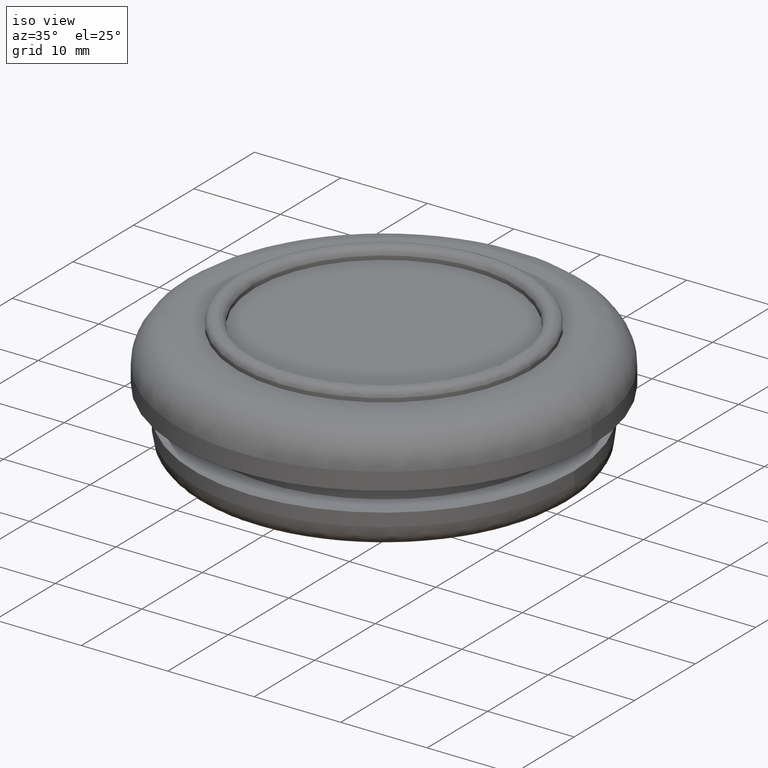
[diagram: clean part render]
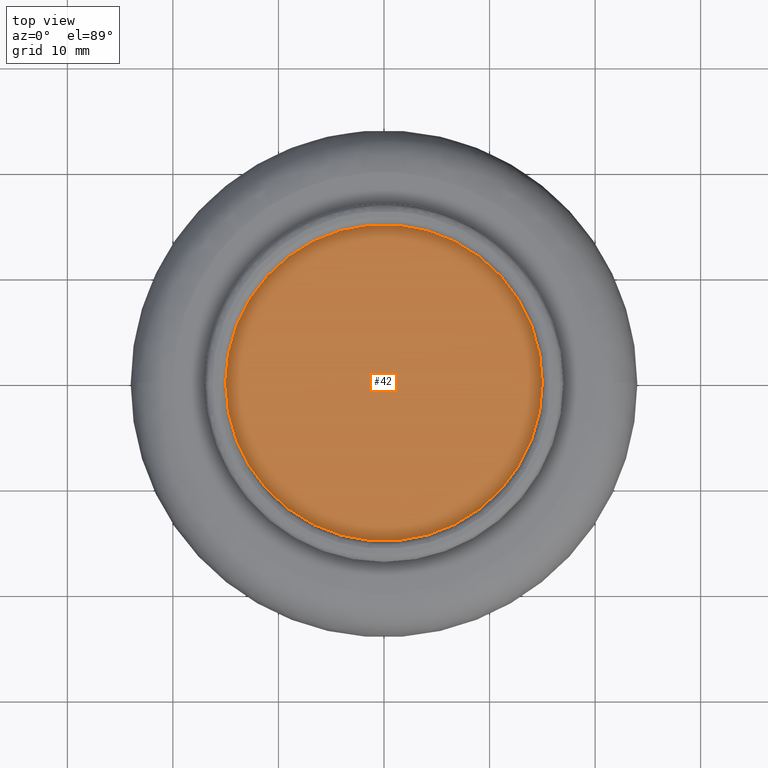
[diagram: tour spotlight — one face highlighted and labeled with its STEP entity id]
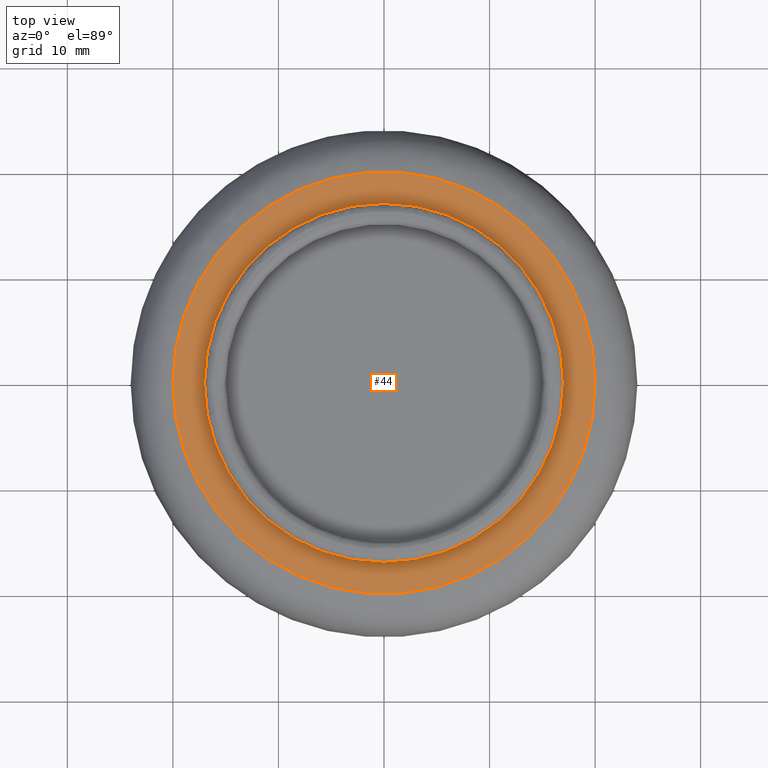
[diagram: tour spotlight — one face highlighted and labeled with its STEP entity id]
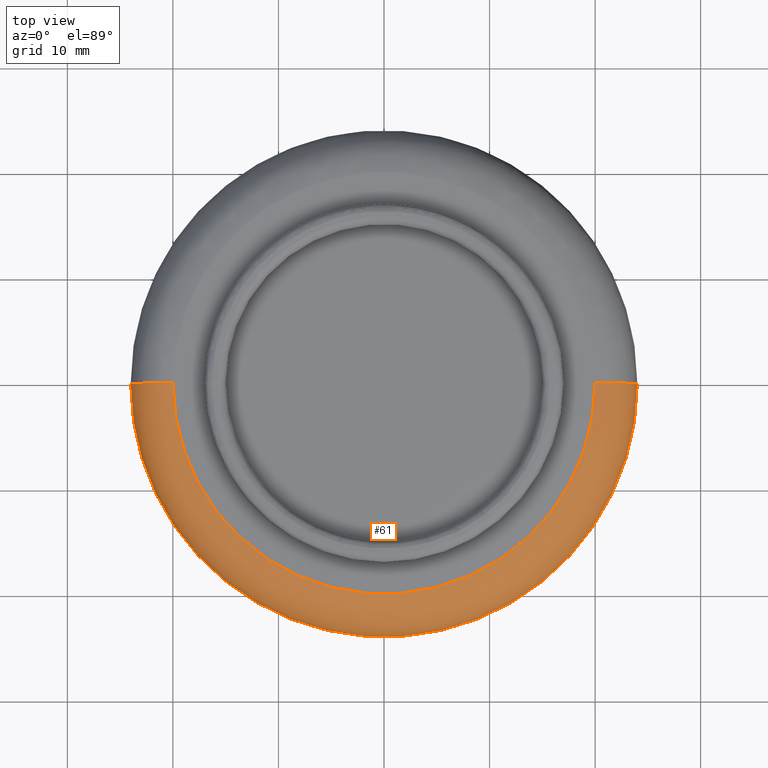
[diagram: tour spotlight — one face highlighted and labeled with its STEP entity id]
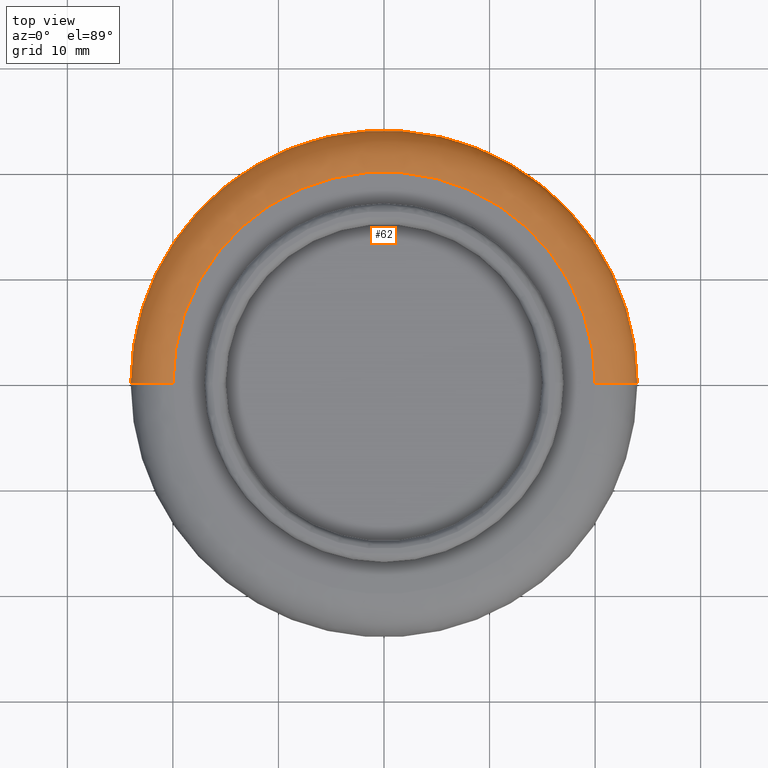
[diagram: tour spotlight — one face highlighted and labeled with its STEP entity id]
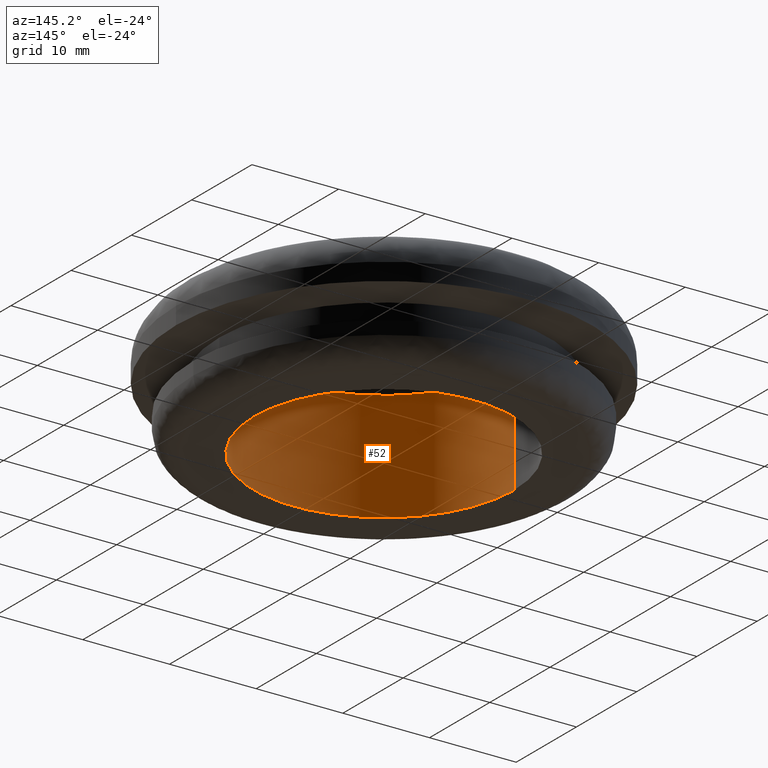
[diagram: tour spotlight — one face highlighted and labeled with its STEP entity id]
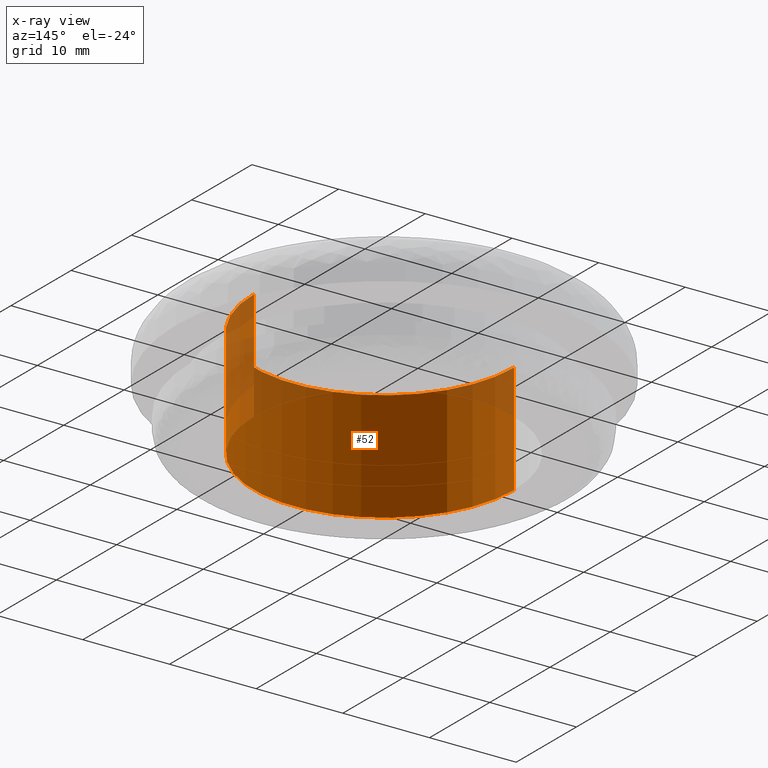
[diagram: x-ray of the same camera — body ghosted, this tour face saturated]
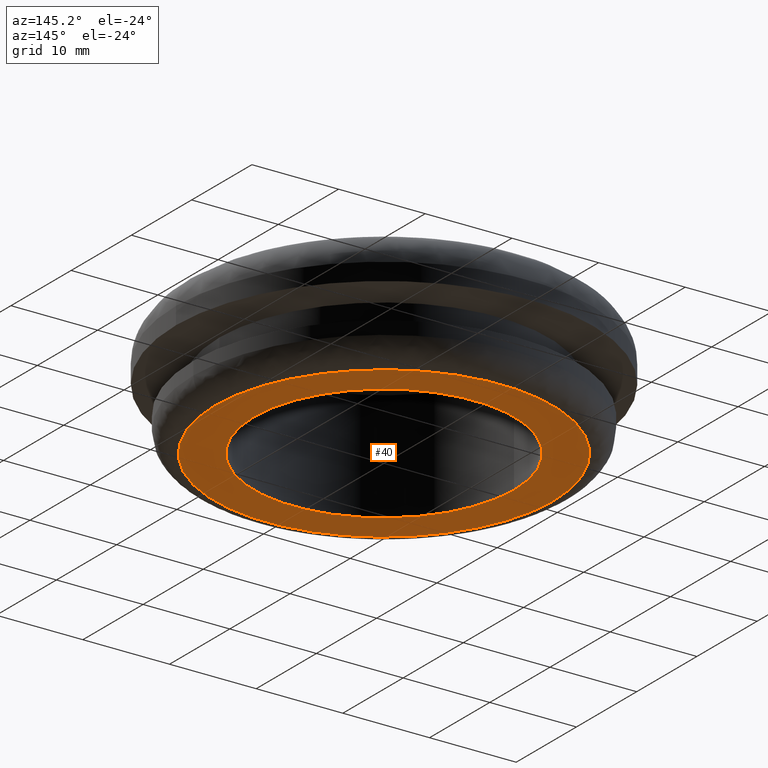
[diagram: tour spotlight — one face highlighted and labeled with its STEP entity id]
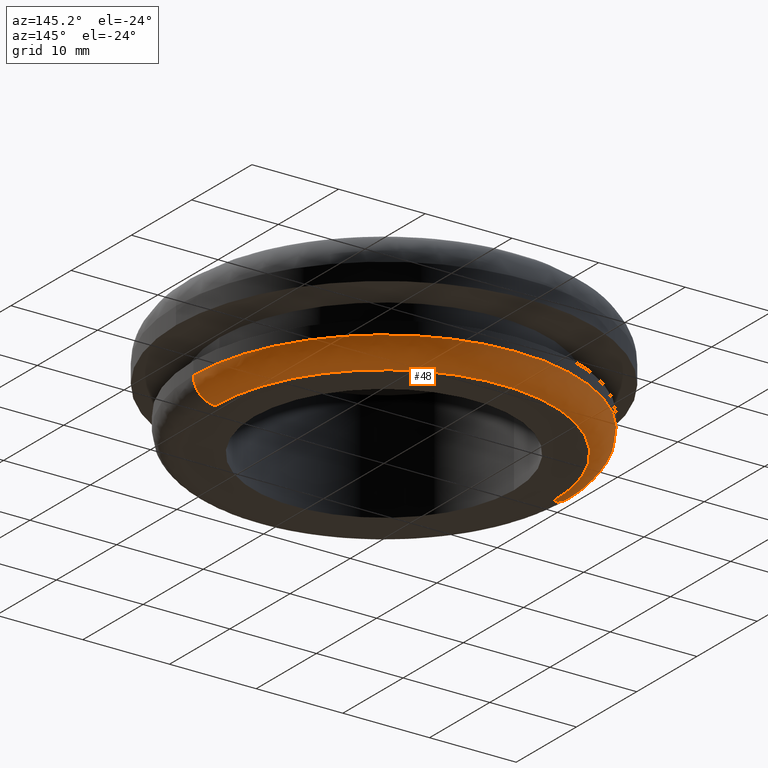
[diagram: tour spotlight — one face highlighted and labeled with its STEP entity id]
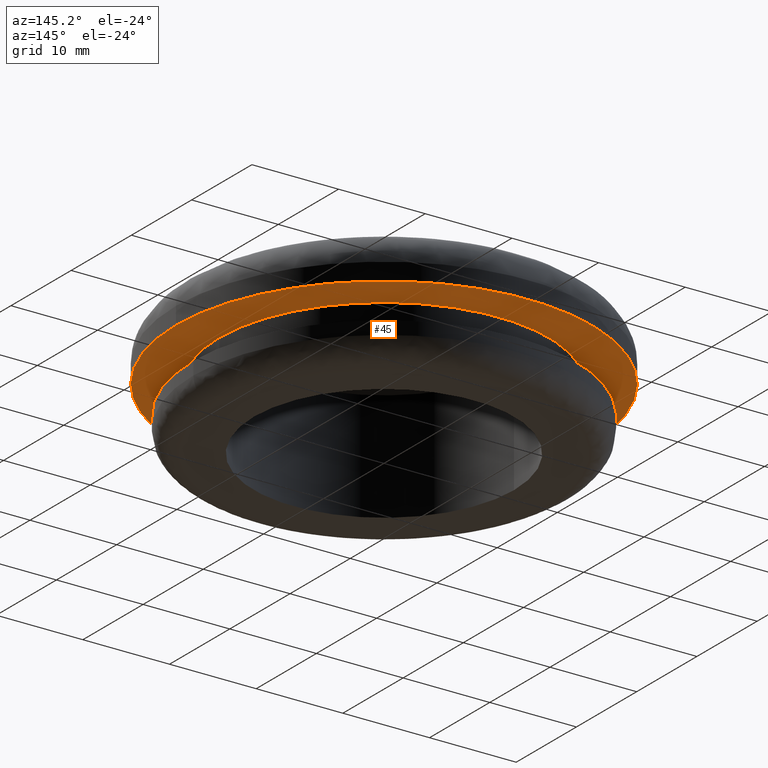
[diagram: tour spotlight — one face highlighted and labeled with its STEP entity id]
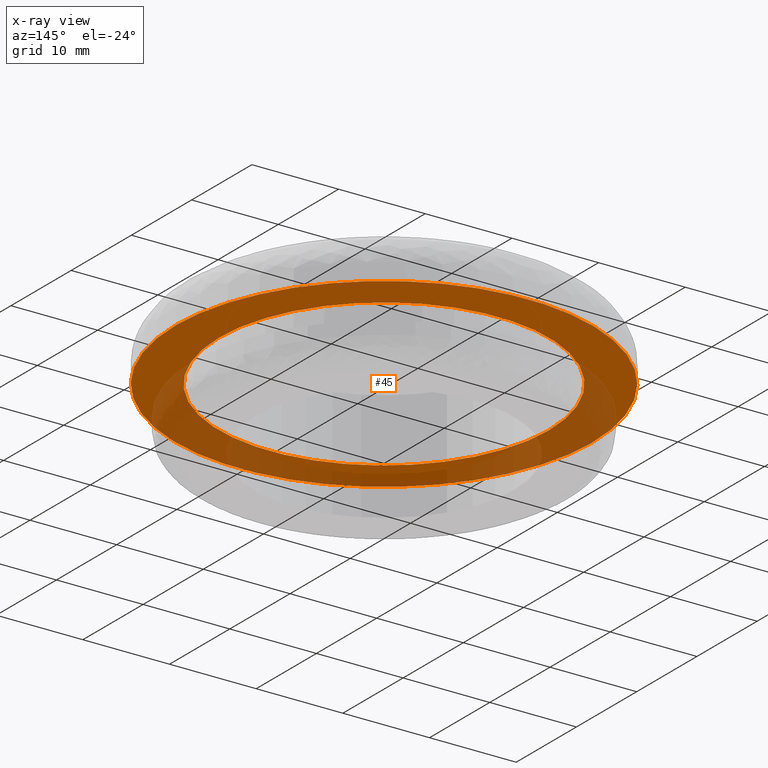
[diagram: x-ray of the same camera — body ghosted, this tour face saturated]
A machine part: a face-by-face anatomy tour. The part has 27 B-rep faces; the first image is the clean iso view, then the 8 largest visible faces are spotlighted one at a time (largest first), each with its STEP entity span.

Face 1 — top view, entity #42. In plain terms, the highlighted planar face has unit normal (-0, 0, -1).
Definition (entity closure, byte-faithful):
#42=ADVANCED_FACE('',(#89),#88,.F.);
#88=PLANE('',#356);
#89=FACE_OUTER_BOUND('',#357,.T.);
#353=CARTESIAN_POINT('',(3.45000000000E+001,-3.11769145362E+001,1.32000000000E+001));
#354=DIRECTION('',(-0.00000000000E+000,0.00000000000E+000,-1.00000000000E+000));
#355=DIRECTION('',(-1.00000000000E+000,0.00000000000E+000,0.00000000000E+000));
#356=AXIS2_PLACEMENT_3D('',#353,#354,#355);
#357=EDGE_LOOP('',(#656,#657));
#656=ORIENTED_EDGE('',*,*,#760,.F.);
#657=ORIENTED_EDGE('',*,*,#761,.F.);
#760=EDGE_CURVE('',#848,#849,#850,.T.);
#761=EDGE_CURVE('',#849,#848,#856,.T.);
#848=VERTEX_POINT('',#1180);
#849=VERTEX_POINT('',#1181);
#850=CIRCLE('',#1185,1.50000000000E+001);
#856=CIRCLE('',#1189,1.50000000000E+001);
#1180=CARTESIAN_POINT('',(1.50000000000E+001,1.77635683940E-015,1.32000000000E+001));
#1181=CARTESIAN_POINT('',(-1.50000000000E+001,0.00000000000E+000,1.32000000000E+001));
#1182=CARTESIAN_POINT('',(0.00000000000E+000,0.00000000000E+000,1.32000000000E+001));
#1183=DIRECTION('',(-0.00000000000E+000,0.00000000000E+000,-1.00000000000E+000));
#1184=DIRECTION('',(-1.00000000000E+000,-1.22460635382E-016,0.00000000000E+000));
#1185=AXIS2_PLACEMENT_3D('',#1182,#1183,#1184);
#1186=CARTESIAN_POINT('',(0.00000000000E+000,0.00000000000E+000,1.32000000000E+001));
#1187=DIRECTION('',(-0.00000000000E+000,0.00000000000E+000,-1.00000000000E+000));
#1188=DIRECTION('',(-1.00000000000E+000,-1.22460635382E-016,0.00000000000E+000));
#1189=AXIS2_PLACEMENT_3D('',#1186,#1187,#1188);

Face 2 — top view, entity #44. In plain terms, the highlighted planar face has unit normal (-0, 0, -1).
Definition (entity closure, byte-faithful):
#44=ADVANCED_FACE('',(#110,#111),#109,.F.);
#109=PLANE('',#367);
#110=FACE_OUTER_BOUND('',#368,.T.);
#111=FACE_BOUND('',#369,.T.);
#364=CARTESIAN_POINT('',(4.60000000000E+001,-4.15692193817E+001,1.32000000000E+001));
#365=DIRECTION('',(-0.00000000000E+000,0.00000000000E+000,-1.00000000000E+000));
#366=DIRECTION('',(-1.00000000000E+000,0.00000000000E+000,0.00000000000E+000));
#367=AXIS2_PLACEMENT_3D('',#364,#365,#366);
#368=EDGE_LOOP('',(#662,#663));
#369=EDGE_LOOP('',(#664,#665));
#662=ORIENTED_EDGE('',*,*,#766,.F.);
#663=ORIENTED_EDGE('',*,*,#767,.F.);
#664=ORIENTED_EDGE('',*,*,#768,.T.);
#665=ORIENTED_EDGE('',*,*,#769,.T.);
#766=EDGE_CURVE('',#890,#891,#892,.T.);
#767=EDGE_CURVE('',#891,#890,#898,.T.);
#768=EDGE_CURVE('',#904,#905,#906,.T.);
#769=EDGE_CURVE('',#905,#904,#912,.T.);
#890=VERTEX_POINT('',#1210);
#891=VERTEX_POINT('',#1211);
#892=CIRCLE('',#1215,2.00000000000E+001);
#898=CIRCLE('',#1219,2.00000000000E+001);
#904=VERTEX_POINT('',#1220);
#905=VERTEX_POINT('',#1221);
#906=CIRCLE('',#1225,1.70000000000E+001);
#912=CIRCLE('',#1229,1.70000000000E+001);
#1210=CARTESIAN_POINT('',(2.00000000000E+001,1.18423789293E-015,1.32000000000E+001));
#1211=CARTESIAN_POINT('',(-2.00000000000E+001,0.00000000000E+000,1.32000000000E+001));
#1212=CARTESIAN_POINT('',(0.00000000000E+000,0.00000000000E+000,1.32000000000E+001));
#1213=DIRECTION('',(-0.00000000000E+000,0.00000000000E+000,-1.00000000000E+000));
#1214=DIRECTION('',(-1.00000000000E+000,-1.22460635382E-016,0.00000000000E+000));
#1215=AXIS2_PLACEMENT_3D('',#1212,#1213,#1214);
#1216=CARTESIAN_POINT('',(0.00000000000E+000,0.00000000000E+000,1.32000000000E+001));
#1217=DIRECTION('',(-0.00000000000E+000,0.00000000000E+000,-1.00000000000E+000));
#1218=DIRECTION('',(-1.00000000000E+000,-1.22460635382E-016,0.00000000000E+000));
#1219=AXIS2_PLACEMENT_3D('',#1216,#1217,#1218);
#1220=CARTESIAN_POINT('',(-1.70000000000E+001,0.00000000000E+000,1.32000000000E+001));
#1221=CARTESIAN_POINT('',(1.70000000000E+001,1.18423789293E-015,1.32000000000E+001));
#1222=CARTESIAN_POINT('',(0.00000000000E+000,0.00000000000E+000,1.32000000000E+001));
#1223=DIRECTION('',(-0.00000000000E+000,0.00000000000E+000,-1.00000000000E+000));
#1224=DIRECTION('',(-1.00000000000E+000,-1.22460635382E-016,0.00000000000E+000));
#1225=AXIS2_PLACEMENT_3D('',#1222,#1223,#1224);
#1226=CARTESIAN_POINT('',(0.00000000000E+000,0.00000000000E+000,1.32000000000E+001));
#1227=DIRECTION('',(-0.00000000000E+000,0.00000000000E+000,-1.00000000000E+000));
#1228=DIRECTION('',(-1.00000000000E+000,-1.22460635382E-016,0.00000000000E+000));
#1229=AXIS2_PLACEMENT_3D('',#1226,#1227,#1228);

Face 3 — top view, entity #61. In plain terms, the highlighted face is a freeform B-spline surface patch.
Definition (entity closure, byte-faithful):
#61=ADVANCED_FACE('',(#283),#282,.T.);
#282=( BOUNDED_SURFACE() B_SPLINE_SURFACE( 2,2,((#578,#579,#580,#581,#582),(#583,#584,#585,#586,#587),(#588,#589,#590,#591,#592),(#593,#594,#595,#596,#597),(#598,#599,#600,#601,#602)), .UNSPECIFIED.,.F.,.F.,.F.) B_SPLINE_SURFACE_WITH_KNOTS((3,2,3),(3,2,3),(0.00000000000E+000,5.00000000000E-001,1.00000000000E+000),(0.00000000000E+000,5.00000000000E-001,1.00000000000E+000), .UNSPECIFIED. ) GEOMETRIC_REPRESENTATION_ITEM() RATIONAL_B_SPLINE_SURFACE(((1.00000000000E+000,7.07106781187E-001,1.00000000000E+000,7.07106781187E-001,1.00000000000E+000),(7.07106781187E-001,5.00000000000E-001,7.07106781187E-001,5.00000000000E-001,7.07106781187E-001),(1.00000000000E+000,7.07106781187E-001,1.00000000000E+000,7.07106781187E-001,1.00000000000E+000),(7.07106781187E-001,5.00000000000E-001,7.07106781187E-001,5.00000000000E-001,7.07106781187E-001),(1.00000000000E+000,7.07106781187E-001,1.00000000000E+000,7.07106781187E-001,1.00000000000E+000))) REPRESENTATION_ITEM('') SURFACE() );
#283=FACE_OUTER_BOUND('',#603,.T.);
#578=CARTESIAN_POINT('',(1.60000000000E+001,-1.95937016612E-015,9.20000000000E+000));
#579=CARTESIAN_POINT('',(1.60000000000E+001,-1.95937016612E-015,1.32000000000E+001));
#580=CARTESIAN_POINT('',(2.00000000000E+001,-2.44921270765E-015,1.32000000000E+001));
#581=CARTESIAN_POINT('',(2.40000000000E+001,-2.93905524917E-015,1.32000000000E+001));
#582=CARTESIAN_POINT('',(2.40000000000E+001,-2.93905524917E-015,9.20000000000E+000));
#583=CARTESIAN_POINT('',(1.60000000000E+001,-1.60000000000E+001,9.20000000000E+000));
#584=CARTESIAN_POINT('',(1.60000000000E+001,-1.60000000000E+001,1.32000000000E+001));
#585=CARTESIAN_POINT('',(2.00000000000E+001,-2.00000000000E+001,1.32000000000E+001));
#586=CARTESIAN_POINT('',(2.40000000000E+001,-2.40000000000E+001,1.32000000000E+001));
#587=CARTESIAN_POINT('',(2.40000000000E+001,-2.40000000000E+001,9.20000000000E+000));
#588=CARTESIAN_POINT('',(-9.79652726798E-016,-1.60000000000E+001,9.20000000000E+000));
#589=CARTESIAN_POINT('',(-9.79652726798E-016,-1.60000000000E+001,1.32000000000E+001));
#590=CARTESIAN_POINT('',(-1.22456590850E-015,-2.00000000000E+001,1.32000000000E+001));
#591=CARTESIAN_POINT('',(-1.46947909020E-015,-2.40000000000E+001,1.32000000000E+001));
#592=CARTESIAN_POINT('',(-1.46947909020E-015,-2.40000000000E+001,9.20000000000E+000));
#593=CARTESIAN_POINT('',(-1.60000000000E+001,-1.60000000000E+001,9.20000000000E+000));
#594=CARTESIAN_POINT('',(-1.60000000000E+001,-1.60000000000E+001,1.32000000000E+001));
#595=CARTESIAN_POINT('',(-2.00000000000E+001,-2.00000000000E+001,1.32000000000E+001));
#596=CARTESIAN_POINT('',(-2.40000000000E+001,-2.40000000000E+001,1.32000000000E+001));
#597=CARTESIAN_POINT('',(-2.40000000000E+001,-2.40000000000E+001,9.20000000000E+000));
#598=CARTESIAN_POINT('',(-1.60000000000E+001,-6.47125199615E-020,9.20000000000E+000));
#599=CARTESIAN_POINT('',(-1.60000000000E+001,-6.47125199611E-020,1.32000000000E+001));
#600=CARTESIAN_POINT('',(-2.00000000000E+001,-8.08906499516E-020,1.32000000000E+001));
#601=CARTESIAN_POINT('',(-2.40000000000E+001,-9.70687799421E-020,1.32000000000E+001));
#602=CARTESIAN_POINT('',(-2.40000000000E+001,-9.70687799421E-020,9.20000000000E+000));
#603=EDGE_LOOP('',(#730,#731,#732,#733));
#730=ORIENTED_EDGE('',*,*,#798,.F.);
#731=ORIENTED_EDGE('',*,*,#799,.F.);
#732=ORIENTED_EDGE('',*,*,#766,.T.);
#733=ORIENTED_EDGE('',*,*,#800,.T.);
#766=EDGE_CURVE('',#890,#891,#892,.T.);
#798=EDGE_CURVE('',#1100,#1101,#1102,.T.);
#799=EDGE_CURVE('',#890,#1100,#1108,.T.);
#800=EDGE_CURVE('',#891,#1101,#1114,.T.);
#890=VERTEX_POINT('',#1210);
#891=VERTEX_POINT('',#1211);
#892=CIRCLE('',#1215,2.00000000000E+001);
#1100=VERTEX_POINT('',#1337);
#1101=VERTEX_POINT('',#1338);
#1102=CIRCLE('',#1342,2.40000000000E+001);
#1108=(BOUNDED_CURVE() B_SPLINE_CURVE(2,(#1343,#1344,#1345),.UNSPECIFIED.,.F.,.F.) B_SPLINE_CURVE_WITH_KNOTS((3,3),(5.00000000000E-001,1.00000000000E+000),.UNSPECIFIED.) CURVE() GEOMETRIC_REPRESENTATION_ITEM() RATIONAL_B_SPLINE_CURVE((1.00000000000E+000,7.07106781187E-001,1.00000000000E+000)) REPRESENTATION_ITEM('') );
#1114=(BOUNDED_CURVE() B_SPLINE_CURVE(3,(#1346,#1347,#1348,#1349,#1350),.UNSPECIFIED.,.F.,.F.) B_SPLINE_CURVE_WITH_KNOTS((4,1,4),(4.99999996419E-001,7.49999997939E-001,1.00000000000E+000),.UNSPECIFIED.) CURVE() GEOMETRIC_REPRESENTATION_ITEM() RATIONAL_B_SPLINE_CURVE((1.00000000000E+000,1.00000000000E+000,1.00000000000E+000,1.00000000000E+000,1.00000000000E+000)) REPRESENTATION_ITEM('') );
#1210=CARTESIAN_POINT('',(2.00000000000E+001,1.18423789293E-015,1.32000000000E+001));
#1211=CARTESIAN_POINT('',(-2.00000000000E+001,0.00000000000E+000,1.32000000000E+001));
#1212=CARTESIAN_POINT('',(0.00000000000E+000,0.00000000000E+000,1.32000000000E+001));
#1213=DIRECTION('',(-0.00000000000E+000,0.00000000000E+000,-1.00000000000E+000));
#1214=DIRECTION('',(-1.00000000000E+000,-1.22460635382E-016,0.00000000000E+000));
#1215=AXIS2_PLACEMENT_3D('',#1212,#1213,#1214);
#1337=CARTESIAN_POINT('',(2.40000000000E+001,-1.18423789293E-015,9.20000000000E+000));
#1338=CARTESIAN_POINT('',(-2.40000000000E+001,0.00000000000E+000,9.20000000000E+000));
#1339=CARTESIAN_POINT('',(0.00000000000E+000,0.00000000000E+000,9.20000000000E+000));
#1340=DIRECTION('',(-0.00000000000E+000,0.00000000000E+000,-1.00000000000E+000));
#1341=DIRECTION('',(-1.00000000000E+000,-1.22460635382E-016,0.00000000000E+000));
#1342=AXIS2_PLACEMENT_3D('',#1339,#1340,#1341);
#1343=CARTESIAN_POINT('',(2.00000000000E+001,-2.44921270765E-015,1.32000000000E+001));
#1344=CARTESIAN_POINT('',(2.40000000000E+001,-2.93905524917E-015,1.32000000000E+001));
#1345=CARTESIAN_POINT('',(2.40000000000E+001,-2.93905524917E-015,9.20000000000E+000));
#1346=CARTESIAN_POINT('',(-1.99999999595E+001,2.36847577884E-015,1.32000000000E+001));
#1347=CARTESIAN_POINT('',(-2.10324494781E+001,3.05668970378E-015,1.32073768812E+001));
#1348=CARTESIAN_POINT('',(-2.31369410447E+001,4.13374801710E-015,1.23369410788E+001));
#1349=CARTESIAN_POINT('',(-2.40073768709E+001,3.93744516934E-015,1.02324495209E+001));
#1350=CARTESIAN_POINT('',(-2.40000000000E+001,3.55271367880E-015,9.20000000000E+000));

Face 4 — top view, entity #62. In plain terms, the highlighted face is a freeform B-spline surface patch.
Definition (entity closure, byte-faithful):
#62=ADVANCED_FACE('',(#293),#292,.T.);
#292=( BOUNDED_SURFACE() B_SPLINE_SURFACE( 2,2,((#604,#605,#606,#607,#608),(#609,#610,#611,#612,#613),(#614,#615,#616,#617,#618),(#619,#620,#621,#622,#623),(#624,#625,#626,#627,#628)), .UNSPECIFIED.,.F.,.F.,.F.) B_SPLINE_SURFACE_WITH_KNOTS((3,2,3),(3,2,3),(0.00000000000E+000,5.00000000000E-001,1.00000000000E+000),(0.00000000000E+000,5.00000000000E-001,1.00000000000E+000), .UNSPECIFIED. ) GEOMETRIC_REPRESENTATION_ITEM() RATIONAL_B_SPLINE_SURFACE(((1.00000000000E+000,7.07106781187E-001,1.00000000000E+000,7.07106781187E-001,1.00000000000E+000),(7.07106781187E-001,5.00000000000E-001,7.07106781187E-001,5.00000000000E-001,7.07106781187E-001),(1.00000000000E+000,7.07106781187E-001,1.00000000000E+000,7.07106781187E-001,1.00000000000E+000),(7.07106781187E-001,5.00000000000E-001,7.07106781187E-001,5.00000000000E-001,7.07106781187E-001),(1.00000000000E+000,7.07106781187E-001,1.00000000000E+000,7.07106781187E-001,1.00000000000E+000))) REPRESENTATION_ITEM('') SURFACE() );
#293=FACE_OUTER_BOUND('',#629,.T.);
#604=CARTESIAN_POINT('',(-1.60000000000E+001,-6.47125199615E-020,9.20000000000E+000));
#605=CARTESIAN_POINT('',(-1.60000000000E+001,-6.47125199615E-020,1.32000000000E+001));
#606=CARTESIAN_POINT('',(-2.00000000000E+001,-8.08906499519E-020,1.32000000000E+001));
#607=CARTESIAN_POINT('',(-2.40000000000E+001,-9.70687799423E-020,1.32000000000E+001));
#608=CARTESIAN_POINT('',(-2.40000000000E+001,-9.70687799423E-020,9.20000000000E+000));
#609=CARTESIAN_POINT('',(-1.60000000000E+001,1.60000000000E+001,9.20000000000E+000));
#610=CARTESIAN_POINT('',(-1.60000000000E+001,1.60000000000E+001,1.32000000000E+001));
#611=CARTESIAN_POINT('',(-2.00000000000E+001,2.00000000000E+001,1.32000000000E+001));
#612=CARTESIAN_POINT('',(-2.40000000000E+001,2.40000000000E+001,1.32000000000E+001));
#613=CARTESIAN_POINT('',(-2.40000000000E+001,2.40000000000E+001,9.20000000000E+000));
#614=CARTESIAN_POINT('',(-9.79782151838E-016,1.60000000000E+001,9.20000000000E+000));
#615=CARTESIAN_POINT('',(-9.79782151838E-016,1.60000000000E+001,1.32000000000E+001));
#616=CARTESIAN_POINT('',(-1.22472768980E-015,2.00000000000E+001,1.32000000000E+001));
#617=CARTESIAN_POINT('',(-1.46967322776E-015,2.40000000000E+001,1.32000000000E+001));
#618=CARTESIAN_POINT('',(-1.46967322776E-015,2.40000000000E+001,9.20000000000E+000));
#619=CARTESIAN_POINT('',(1.60000000000E+001,1.60000000000E+001,9.20000000000E+000));
#620=CARTESIAN_POINT('',(1.60000000000E+001,1.60000000000E+001,1.32000000000E+001));
#621=CARTESIAN_POINT('',(2.00000000000E+001,2.00000000000E+001,1.32000000000E+001));
#622=CARTESIAN_POINT('',(2.40000000000E+001,2.40000000000E+001,1.32000000000E+001));
#623=CARTESIAN_POINT('',(2.40000000000E+001,2.40000000000E+001,9.20000000000E+000));
#624=CARTESIAN_POINT('',(1.60000000000E+001,1.95949959116E-015,9.20000000000E+000));
#625=CARTESIAN_POINT('',(1.60000000000E+001,1.95949959116E-015,1.32000000000E+001));
#626=CARTESIAN_POINT('',(2.00000000000E+001,2.44937448895E-015,1.32000000000E+001));
#627=CARTESIAN_POINT('',(2.40000000000E+001,2.93924938673E-015,1.32000000000E+001));
#628=CARTESIAN_POINT('',(2.40000000000E+001,2.93924938673E-015,9.20000000000E+000));
#629=EDGE_LOOP('',(#734,#735,#736,#737));
#734=ORIENTED_EDGE('',*,*,#767,.T.);
#735=ORIENTED_EDGE('',*,*,#799,.T.);
#736=ORIENTED_EDGE('',*,*,#801,.F.);
#737=ORIENTED_EDGE('',*,*,#800,.F.);
#767=EDGE_CURVE('',#891,#890,#898,.T.);
#799=EDGE_CURVE('',#890,#1100,#1108,.T.);
#800=EDGE_CURVE('',#891,#1101,#1114,.T.);
#801=EDGE_CURVE('',#1101,#1100,#1120,.T.);
#890=VERTEX_POINT('',#1210);
#891=VERTEX_POINT('',#1211);
#898=CIRCLE('',#1219,2.00000000000E+001);
#1100=VERTEX_POINT('',#1337);
#1101=VERTEX_POINT('',#1338);
#1108=(BOUNDED_CURVE() B_SPLINE_CURVE(2,(#1343,#1344,#1345),.UNSPECIFIED.,.F.,.F.) B_SPLINE_CURVE_WITH_KNOTS((3,3),(5.00000000000E-001,1.00000000000E+000),.UNSPECIFIED.) CURVE() GEOMETRIC_REPRESENTATION_ITEM() RATIONAL_B_SPLINE_CURVE((1.00000000000E+000,7.07106781187E-001,1.00000000000E+000)) REPRESENTATION_ITEM('') );
#1114=(BOUNDED_CURVE() B_SPLINE_CURVE(3,(#1346,#1347,#1348,#1349,#1350),.UNSPECIFIED.,.F.,.F.) B_SPLINE_CURVE_WITH_KNOTS((4,1,4),(4.99999996419E-001,7.49999997939E-001,1.00000000000E+000),.UNSPECIFIED.) CURVE() GEOMETRIC_REPRESENTATION_ITEM() RATIONAL_B_SPLINE_CURVE((1.00000000000E+000,1.00000000000E+000,1.00000000000E+000,1.00000000000E+000,1.00000000000E+000)) REPRESENTATION_ITEM('') );
#1120=CIRCLE('',#1354,2.40000000000E+001);
#1210=CARTESIAN_POINT('',(2.00000000000E+001,1.18423789293E-015,1.32000000000E+001));
#1211=CARTESIAN_POINT('',(-2.00000000000E+001,0.00000000000E+000,1.32000000000E+001));
#1216=CARTESIAN_POINT('',(0.00000000000E+000,0.00000000000E+000,1.32000000000E+001));
#1217=DIRECTION('',(-0.00000000000E+000,0.00000000000E+000,-1.00000000000E+000));
#1218=DIRECTION('',(-1.00000000000E+000,-1.22460635382E-016,0.00000000000E+000));
#1219=AXIS2_PLACEMENT_3D('',#1216,#1217,#1218);
#1337=CARTESIAN_POINT('',(2.40000000000E+001,-1.18423789293E-015,9.20000000000E+000));
#1338=CARTESIAN_POINT('',(-2.40000000000E+001,0.00000000000E+000,9.20000000000E+000));
#1343=CARTESIAN_POINT('',(2.00000000000E+001,-2.44921270765E-015,1.32000000000E+001));
#1344=CARTESIAN_POINT('',(2.40000000000E+001,-2.93905524917E-015,1.32000000000E+001));
#1345=CARTESIAN_POINT('',(2.40000000000E+001,-2.93905524917E-015,9.20000000000E+000));
#1346=CARTESIAN_POINT('',(-1.99999999595E+001,2.36847577884E-015,1.32000000000E+001));
#1347=CARTESIAN_POINT('',(-2.10324494781E+001,3.05668970378E-015,1.32073768812E+001));
#1348=CARTESIAN_POINT('',(-2.31369410447E+001,4.13374801710E-015,1.23369410788E+001));
#1349=CARTESIAN_POINT('',(-2.40073768709E+001,3.93744516934E-015,1.02324495209E+001));
#1350=CARTESIAN_POINT('',(-2.40000000000E+001,3.55271367880E-015,9.20000000000E+000));
#1351=CARTESIAN_POINT('',(0.00000000000E+000,0.00000000000E+000,9.20000000000E+000));
#1352=DIRECTION('',(-0.00000000000E+000,0.00000000000E+000,-1.00000000000E+000));
#1353=DIRECTION('',(-1.00000000000E+000,-1.22460635382E-016,0.00000000000E+000));
#1354=AXIS2_PLACEMENT_3D('',#1351,#1352,#1353);

Face 5 — auxiliary view, entity #52. An x-ray twin of the same camera follows (body ghosted, this face saturated) — the face is partly hidden behind the body. In plain terms, the highlighted cylindrical surface (partial cylindrical patch) has radius 15 mm, axis along (0, -0, 1).
Definition (entity closure, byte-faithful):
#52=ADVANCED_FACE('',(#193),#192,.F.);
#192=CYLINDRICAL_SURFACE('',#452,1.50000000000E+001);
#193=FACE_OUTER_BOUND('',#453,.T.);
#449=CARTESIAN_POINT('',(0.00000000000E+000,0.00000000000E+000,0.00000000000E+000));
#450=DIRECTION('',(0.00000000000E+000,-0.00000000000E+000,1.00000000000E+000));
#451=DIRECTION('',(1.00000000000E+000,-0.00000000000E+000,-0.00000000000E+000));
#452=AXIS2_PLACEMENT_3D('',#449,#450,#451);
#453=EDGE_LOOP('',(#694,#695,#696,#697));
#694=ORIENTED_EDGE('',*,*,#759,.F.);
#695=ORIENTED_EDGE('',*,*,#784,.F.);
#696=ORIENTED_EDGE('',*,*,#756,.T.);
#697=ORIENTED_EDGE('',*,*,#785,.T.);
#756=EDGE_CURVE('',#820,#821,#822,.T.);
#759=EDGE_CURVE('',#835,#834,#842,.T.);
#784=EDGE_CURVE('',#820,#835,#1012,.T.);
#785=EDGE_CURVE('',#821,#834,#1018,.T.);
#820=VERTEX_POINT('',#1160);
#821=VERTEX_POINT('',#1161);
#822=CIRCLE('',#1165,1.50000000000E+001);
#834=VERTEX_POINT('',#1170);
#835=VERTEX_POINT('',#1171);
#842=CIRCLE('',#1179,1.50000000000E+001);
#1012=(BOUNDED_CURVE() B_SPLINE_CURVE(1,(#1292,#1293),.UNSPECIFIED.,.F.,.F.) B_SPLINE_CURVE_WITH_KNOTS((2,2),(8.33333343261E-002,9.16666667006E-001),.UNSPECIFIED.) CURVE() GEOMETRIC_REPRESENTATION_ITEM() RATIONAL_B_SPLINE_CURVE((1.00000000000E+000,1.00000000000E+000)) REPRESENTATION_ITEM('') );
#1018=(BOUNDED_CURVE() B_SPLINE_CURVE(1,(#1294,#1295),.UNSPECIFIED.,.F.,.F.) B_SPLINE_CURVE_WITH_KNOTS((2,2),(8.33333333333E-002,9.16666666667E-001),.UNSPECIFIED.) CURVE() GEOMETRIC_REPRESENTATION_ITEM() RATIONAL_B_SPLINE_CURVE((7.50000000000E-001,7.50000000000E-001)) REPRESENTATION_ITEM('') );
#1160=CARTESIAN_POINT('',(1.50000000000E+001,1.77635683940E-015,-9.94759830064E-014));
#1161=CARTESIAN_POINT('',(-1.50000000000E+001,0.00000000000E+000,-9.94759830064E-014));
#1162=CARTESIAN_POINT('',(0.00000000000E+000,0.00000000000E+000,-9.94759830064E-014));
#1163=DIRECTION('',(-0.00000000000E+000,0.00000000000E+000,-1.00000000000E+000));
#1164=DIRECTION('',(-1.00000000000E+000,-1.22460635382E-016,0.00000000000E+000));
#1165=AXIS2_PLACEMENT_3D('',#1162,#1163,#1164);
#1170=CARTESIAN_POINT('',(-1.50000000000E+001,0.00000000000E+000,1.27000000000E+001));
#1171=CARTESIAN_POINT('',(1.50000000000E+001,1.77635683940E-015,1.27000000000E+001));
#1176=CARTESIAN_POINT('',(0.00000000000E+000,0.00000000000E+000,1.27000000000E+001));
#1177=DIRECTION('',(-0.00000000000E+000,0.00000000000E+000,-1.00000000000E+000));
#1178=DIRECTION('',(-1.00000000000E+000,-1.22460635382E-016,0.00000000000E+000));
#1179=AXIS2_PLACEMENT_3D('',#1176,#1177,#1178);
#1292=CARTESIAN_POINT('',(1.50000000000E+001,0.00000000000E+000,1.51293197970E-008));
#1293=CARTESIAN_POINT('',(1.50000000000E+001,0.00000000000E+000,1.27000000052E+001));
#1294=CARTESIAN_POINT('',(-1.50000000000E+001,0.00000000000E+000,-9.94759830064E-014));
#1295=CARTESIAN_POINT('',(-1.50000000000E+001,0.00000000000E+000,1.27000000000E+001));

Face 6 — auxiliary view, entity #40. In plain terms, the highlighted planar face has unit normal (0, 0, 1).
Definition (entity closure, byte-faithful):
#40=ADVANCED_FACE('',(#68,#69),#67,.F.);
#67=PLANE('',#345);
#68=FACE_OUTER_BOUND('',#346,.T.);
#69=FACE_BOUND('',#347,.T.);
#342=CARTESIAN_POINT('',(-2.53500000000E+001,-4.05299888971E+001,-9.94759830064E-014));
#343=DIRECTION('',(0.00000000000E+000,0.00000000000E+000,1.00000000000E+000));
#344=DIRECTION('',(1.00000000000E+000,0.00000000000E+000,-0.00000000000E+000));
#345=AXIS2_PLACEMENT_3D('',#342,#343,#344);
#346=EDGE_LOOP('',(#650,#651));
#347=EDGE_LOOP('',(#652,#653));
#650=ORIENTED_EDGE('',*,*,#754,.T.);
#651=ORIENTED_EDGE('',*,*,#755,.T.);
#652=ORIENTED_EDGE('',*,*,#756,.F.);
#653=ORIENTED_EDGE('',*,*,#757,.F.);
#754=EDGE_CURVE('',#806,#807,#808,.T.);
#755=EDGE_CURVE('',#807,#806,#814,.T.);
#756=EDGE_CURVE('',#820,#821,#822,.T.);
#757=EDGE_CURVE('',#821,#820,#828,.T.);
#806=VERTEX_POINT('',#1150);
#807=VERTEX_POINT('',#1151);
#808=CIRCLE('',#1155,1.95000000000E+001);
#814=CIRCLE('',#1159,1.95000000000E+001);
#820=VERTEX_POINT('',#1160);
#821=VERTEX_POINT('',#1161);
#822=CIRCLE('',#1165,1.50000000000E+001);
#828=CIRCLE('',#1169,1.50000000000E+001);
#1150=CARTESIAN_POINT('',(-1.95000000000E+001,0.00000000000E+000,-9.94759830064E-014));
#1151=CARTESIAN_POINT('',(1.95000000000E+001,1.18423789293E-015,-9.94759830064E-014));
#1152=CARTESIAN_POINT('',(0.00000000000E+000,0.00000000000E+000,-9.94759830064E-014));
#1153=DIRECTION('',(-0.00000000000E+000,0.00000000000E+000,-1.00000000000E+000));
#1154=DIRECTION('',(-1.00000000000E+000,-1.22460635382E-016,0.00000000000E+000));
#1155=AXIS2_PLACEMENT_3D('',#1152,#1153,#1154);
#1156=CARTESIAN_POINT('',(0.00000000000E+000,0.00000000000E+000,-9.94759830064E-014));
#1157=DIRECTION('',(-0.00000000000E+000,0.00000000000E+000,-1.00000000000E+000));
#1158=DIRECTION('',(-1.00000000000E+000,-1.22460635382E-016,0.00000000000E+000));
#1159=AXIS2_PLACEMENT_3D('',#1156,#1157,#1158);
#1160=CARTESIAN_POINT('',(1.50000000000E+001,1.77635683940E-015,-9.94759830064E-014));
#1161=CARTESIAN_POINT('',(-1.50000000000E+001,0.00000000000E+000,-9.94759830064E-014));
#1162=CARTESIAN_POINT('',(0.00000000000E+000,0.00000000000E+000,-9.94759830064E-014));
#1163=DIRECTION('',(-0.00000000000E+000,0.00000000000E+000,-1.00000000000E+000));
#1164=DIRECTION('',(-1.00000000000E+000,-1.22460635382E-016,0.00000000000E+000));
#1165=AXIS2_PLACEMENT_3D('',#1162,#1163,#1164);
#1166=CARTESIAN_POINT('',(0.00000000000E+000,0.00000000000E+000,-9.94759830064E-014));
#1167=DIRECTION('',(-0.00000000000E+000,0.00000000000E+000,-1.00000000000E+000));
#1168=DIRECTION('',(-1.00000000000E+000,-1.22460635382E-016,0.00000000000E+000));
#1169=AXIS2_PLACEMENT_3D('',#1166,#1167,#1168);

Face 7 — auxiliary view, entity #48. In plain terms, the highlighted face is a freeform B-spline surface patch.
Definition (entity closure, byte-faithful):
#48=ADVANCED_FACE('',(#153),#152,.T.);
#152=( BOUNDED_SURFACE() B_SPLINE_SURFACE( 2,2,((#408,#409,#410,#411,#412),(#413,#414,#415,#416,#417),(#418,#419,#420,#421,#422),(#423,#424,#425,#426,#427),(#428,#429,#430,#431,#432)), .UNSPECIFIED.,.F.,.F.,.F.) B_SPLINE_SURFACE_WITH_KNOTS((3,2,3),(3,2,3),(0.00000000000E+000,5.00000000000E-001,1.00000000000E+000),(0.00000000000E+000,5.00000000000E-001,1.00000000000E+000), .UNSPECIFIED. ) GEOMETRIC_REPRESENTATION_ITEM() RATIONAL_B_SPLINE_SURFACE(((1.00000000000E+000,7.07106781187E-001,1.00000000000E+000,7.07106781187E-001,1.00000000000E+000),(7.07106781187E-001,5.00000000000E-001,7.07106781187E-001,5.00000000000E-001,7.07106781187E-001),(1.00000000000E+000,7.07106781187E-001,1.00000000000E+000,7.07106781187E-001,1.00000000000E+000),(7.07106781187E-001,5.00000000000E-001,7.07106781187E-001,5.00000000000E-001,7.07106781187E-001),(1.00000000000E+000,7.07106781187E-001,1.00000000000E+000,7.07106781187E-001,1.00000000000E+000))) REPRESENTATION_ITEM('') SURFACE() );
#153=FACE_OUTER_BOUND('',#433,.T.);
#408=CARTESIAN_POINT('',(-2.20000000000E+001,-8.89797149471E-020,2.50000000000E+000));
#409=CARTESIAN_POINT('',(-2.20000000000E+001,-8.89797149471E-020,-1.06452268699E-013));
#410=CARTESIAN_POINT('',(-1.95000000000E+001,-7.88683837031E-020,-9.94759830064E-014));
#411=CARTESIAN_POINT('',(-1.70000000000E+001,-6.87570524591E-020,-9.20074180789E-014));
#412=CARTESIAN_POINT('',(-1.70000000000E+001,-6.87570524591E-020,2.50000000000E+000));
#413=CARTESIAN_POINT('',(-2.20000000000E+001,2.20000000000E+001,2.50000000000E+000));
#414=CARTESIAN_POINT('',(-2.20000000000E+001,2.20000000000E+001,-1.06452268699E-013));
#415=CARTESIAN_POINT('',(-1.95000000000E+001,1.95000000000E+001,-9.94759830064E-014));
#416=CARTESIAN_POINT('',(-1.70000000000E+001,1.70000000000E+001,-9.20074180789E-014));
#417=CARTESIAN_POINT('',(-1.70000000000E+001,1.70000000000E+001,2.50000000000E+000));
#418=CARTESIAN_POINT('',(-1.34720045878E-015,2.20000000000E+001,2.50000000000E+000));
#419=CARTESIAN_POINT('',(-1.34720045878E-015,2.20000000000E+001,-1.06452268699E-013));
#420=CARTESIAN_POINT('',(-1.19410949755E-015,1.95000000000E+001,-9.94759830064E-014));
#421=CARTESIAN_POINT('',(-1.04101853633E-015,1.70000000000E+001,-9.20074180789E-014));
#422=CARTESIAN_POINT('',(-1.04101853633E-015,1.70000000000E+001,2.50000000000E+000));
#423=CARTESIAN_POINT('',(2.20000000000E+001,2.20000000000E+001,2.50000000000E+000));
#424=CARTESIAN_POINT('',(2.20000000000E+001,2.20000000000E+001,-1.06452268699E-013));
#425=CARTESIAN_POINT('',(1.95000000000E+001,1.95000000000E+001,-9.94759830064E-014));
#426=CARTESIAN_POINT('',(1.70000000000E+001,1.70000000000E+001,-9.20074180789E-014));
#427=CARTESIAN_POINT('',(1.70000000000E+001,1.70000000000E+001,2.50000000000E+000));
#428=CARTESIAN_POINT('',(2.20000000000E+001,2.69431193784E-015,2.50000000000E+000));
#429=CARTESIAN_POINT('',(2.20000000000E+001,2.69431193784E-015,-1.06452268699E-013));
#430=CARTESIAN_POINT('',(1.95000000000E+001,2.38814012672E-015,-9.94759830064E-014));
#431=CARTESIAN_POINT('',(1.70000000000E+001,2.08196831560E-015,-9.20074180789E-014));
#432=CARTESIAN_POINT('',(1.70000000000E+001,2.08196831560E-015,2.50000000000E+000));
#433=EDGE_LOOP('',(#678,#679,#680,#681));
#678=ORIENTED_EDGE('',*,*,#781,.T.);
#679=ORIENTED_EDGE('',*,*,#778,.T.);
#680=ORIENTED_EDGE('',*,*,#754,.F.);
#681=ORIENTED_EDGE('',*,*,#780,.F.);
#754=EDGE_CURVE('',#806,#807,#808,.T.);
#778=EDGE_CURVE('',#974,#807,#975,.T.);
#780=EDGE_CURVE('',#981,#806,#988,.T.);
#781=EDGE_CURVE('',#981,#974,#994,.T.);
#806=VERTEX_POINT('',#1150);
#807=VERTEX_POINT('',#1151);
#808=CIRCLE('',#1155,1.95000000000E+001);
#974=VERTEX_POINT('',#1270);
#975=(BOUNDED_CURVE() B_SPLINE_CURVE(2,(#1271,#1272,#1273),.UNSPECIFIED.,.F.,.F.) B_SPLINE_CURVE_WITH_KNOTS((3,3),(0.00000000000E+000,5.00000000000E-001),.UNSPECIFIED.) CURVE() GEOMETRIC_REPRESENTATION_ITEM() RATIONAL_B_SPLINE_CURVE((1.00000000000E+000,7.07106781187E-001,1.00000000000E+000)) REPRESENTATION_ITEM('') );
#981=VERTEX_POINT('',#1274);
#988=(BOUNDED_CURVE() B_SPLINE_CURVE(3,(#1279,#1280,#1281,#1282,#1283),.UNSPECIFIED.,.F.,.F.) B_SPLINE_CURVE_WITH_KNOTS((4,1,4),(0.00000000000E+000,2.50000001665E-001,5.00000002891E-001),.UNSPECIFIED.) CURVE() GEOMETRIC_REPRESENTATION_ITEM() RATIONAL_B_SPLINE_CURVE((1.00000000000E+000,1.00000000000E+000,1.00000000000E+000,1.00000000000E+000,1.00000000000E+000)) REPRESENTATION_ITEM('') );
#994=CIRCLE('',#1287,2.20000000000E+001);
#1150=CARTESIAN_POINT('',(-1.95000000000E+001,0.00000000000E+000,-9.94759830064E-014));
#1151=CARTESIAN_POINT('',(1.95000000000E+001,1.18423789293E-015,-9.94759830064E-014));
#1152=CARTESIAN_POINT('',(0.00000000000E+000,0.00000000000E+000,-9.94759830064E-014));
#1153=DIRECTION('',(-0.00000000000E+000,0.00000000000E+000,-1.00000000000E+000));
#1154=DIRECTION('',(-1.00000000000E+000,-1.22460635382E-016,0.00000000000E+000));
#1155=AXIS2_PLACEMENT_3D('',#1152,#1153,#1154);
#1270=CARTESIAN_POINT('',(2.20000000000E+001,1.18423789293E-015,2.50000000000E+000));
#1271=CARTESIAN_POINT('',(2.20000000000E+001,-2.69413397841E-015,2.50000000000E+000));
#1272=CARTESIAN_POINT('',(2.20000000000E+001,-2.69413397841E-015,-1.06452268699E-013));
#1273=CARTESIAN_POINT('',(1.95000000000E+001,-2.38798238995E-015,-9.94759830064E-014));
#1274=CARTESIAN_POINT('',(-2.20000000000E+001,0.00000000000E+000,2.50000000000E+000));
#1279=CARTESIAN_POINT('',(-2.20000000000E+001,2.36847578587E-015,2.50000000000E+000));
#1280=CARTESIAN_POINT('',(-2.20055601483E+001,2.84431449309E-015,1.85137389675E+000));
#1281=CARTESIAN_POINT('',(-2.14584407757E+001,3.39907998654E-015,5.41559207146E-001));
#1282=CARTESIAN_POINT('',(-2.01486260816E+001,2.84431447270E-015,-5.56015351358E-003));
#1283=CARTESIAN_POINT('',(-1.94999999796E+001,2.36847578704E-015,-9.93924305680E-014));
#1284=CARTESIAN_POINT('',(0.00000000000E+000,0.00000000000E+000,2.50000000000E+000));
#1285=DIRECTION('',(-0.00000000000E+000,0.00000000000E+000,-1.00000000000E+000));
#1286=DIRECTION('',(-1.00000000000E+000,-1.22460635382E-016,0.00000000000E+000));
#1287=AXIS2_PLACEMENT_3D('',#1284,#1285,#1286);

Face 8 — auxiliary view, entity #45. An x-ray twin of the same camera follows (body ghosted, this face saturated) — the face is partly hidden behind the body. In plain terms, the highlighted planar face has unit normal (0, 0, 1).
Definition (entity closure, byte-faithful):
#45=ADVANCED_FACE('',(#121,#122),#120,.F.);
#120=PLANE('',#373);
#121=FACE_OUTER_BOUND('',#374,.T.);
#122=FACE_BOUND('',#375,.T.);
#370=CARTESIAN_POINT('',(-3.12000000000E+001,-4.98830632580E+001,7.20000000000E+000));
#371=DIRECTION('',(0.00000000000E+000,0.00000000000E+000,1.00000000000E+000));
#372=DIRECTION('',(1.00000000000E+000,0.00000000000E+000,-0.00000000000E+000));
#373=AXIS2_PLACEMENT_3D('',#370,#371,#372);
#374=EDGE_LOOP('',(#666,#667));
#375=EDGE_LOOP('',(#668,#669));
#666=ORIENTED_EDGE('',*,*,#770,.T.);
#667=ORIENTED_EDGE('',*,*,#771,.T.);
#668=ORIENTED_EDGE('',*,*,#772,.F.);
#669=ORIENTED_EDGE('',*,*,#773,.F.);
#770=EDGE_CURVE('',#918,#919,#920,.T.);
#771=EDGE_CURVE('',#919,#918,#926,.T.);
#772=EDGE_CURVE('',#932,#933,#934,.T.);
#773=EDGE_CURVE('',#933,#932,#940,.T.);
#918=VERTEX_POINT('',#1230);
#919=VERTEX_POINT('',#1231);
#920=CIRCLE('',#1235,2.40000000000E+001);
#926=CIRCLE('',#1239,2.40000000000E+001);
#932=VERTEX_POINT('',#1240);
#933=VERTEX_POINT('',#1241);
#934=CIRCLE('',#1245,1.90000000000E+001);
#940=CIRCLE('',#1249,1.90000000000E+001);
#1230=CARTESIAN_POINT('',(-2.40000000000E+001,0.00000000000E+000,7.20000000000E+000));
#1231=CARTESIAN_POINT('',(2.40000000000E+001,-1.18423789293E-015,7.20000000000E+000));
#1232=CARTESIAN_POINT('',(0.00000000000E+000,0.00000000000E+000,7.20000000000E+000));
#1233=DIRECTION('',(-0.00000000000E+000,0.00000000000E+000,-1.00000000000E+000));
#1234=DIRECTION('',(-1.00000000000E+000,-1.22460635382E-016,0.00000000000E+000));
#1235=AXIS2_PLACEMENT_3D('',#1232,#1233,#1234);
#1236=CARTESIAN_POINT('',(0.00000000000E+000,0.00000000000E+000,7.20000000000E+000));
#1237=DIRECTION('',(-0.00000000000E+000,0.00000000000E+000,-1.00000000000E+000));
#1238=DIRECTION('',(-1.00000000000E+000,-1.22460635382E-016,0.00000000000E+000));
#1239=AXIS2_PLACEMENT_3D('',#1236,#1237,#1238);
#1240=CARTESIAN_POINT('',(1.90000000000E+001,0.00000000000E+000,7.20000000000E+000));
#1241=CARTESIAN_POINT('',(-1.90000000000E+001,0.00000000000E+000,7.20000000000E+000));
#1242=CARTESIAN_POINT('',(0.00000000000E+000,0.00000000000E+000,7.20000000000E+000));
#1243=DIRECTION('',(-0.00000000000E+000,0.00000000000E+000,-1.00000000000E+000));
#1244=DIRECTION('',(-1.00000000000E+000,-1.22460635382E-016,0.00000000000E+000));
#1245=AXIS2_PLACEMENT_3D('',#1242,#1243,#1244);
#1246=CARTESIAN_POINT('',(0.00000000000E+000,0.00000000000E+000,7.20000000000E+000));
#1247=DIRECTION('',(-0.00000000000E+000,0.00000000000E+000,-1.00000000000E+000));
#1248=DIRECTION('',(-1.00000000000E+000,-1.22460635382E-016,0.00000000000E+000));
#1249=AXIS2_PLACEMENT_3D('',#1246,#1247,#1248);